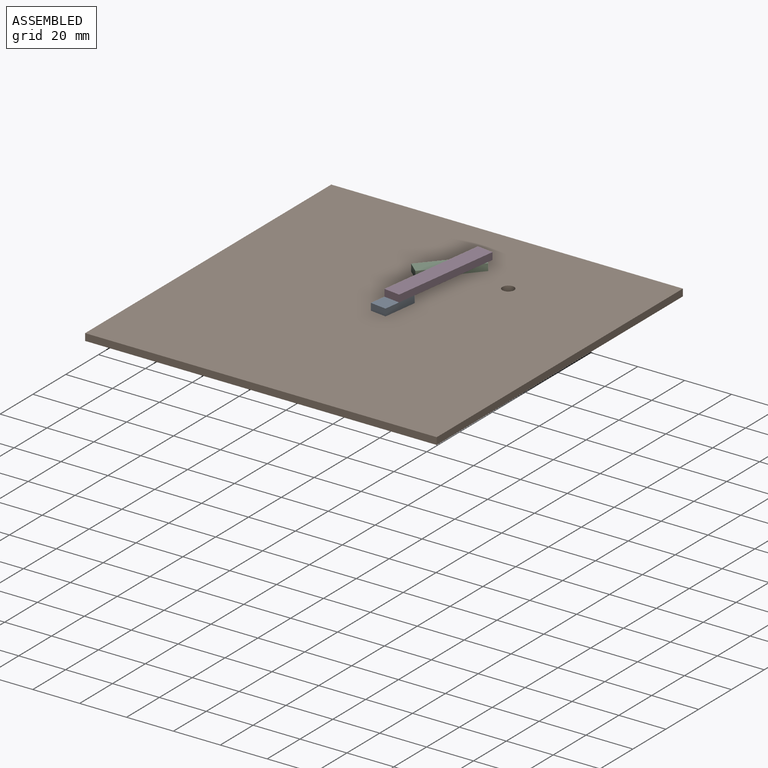
[diagram: assembled view]
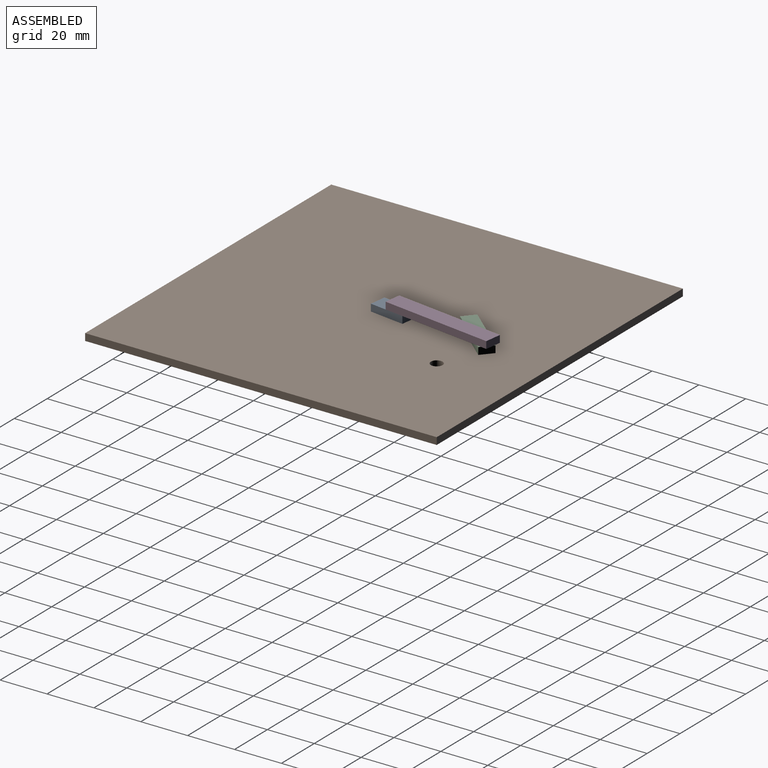
[diagram: assembled view, second angle]
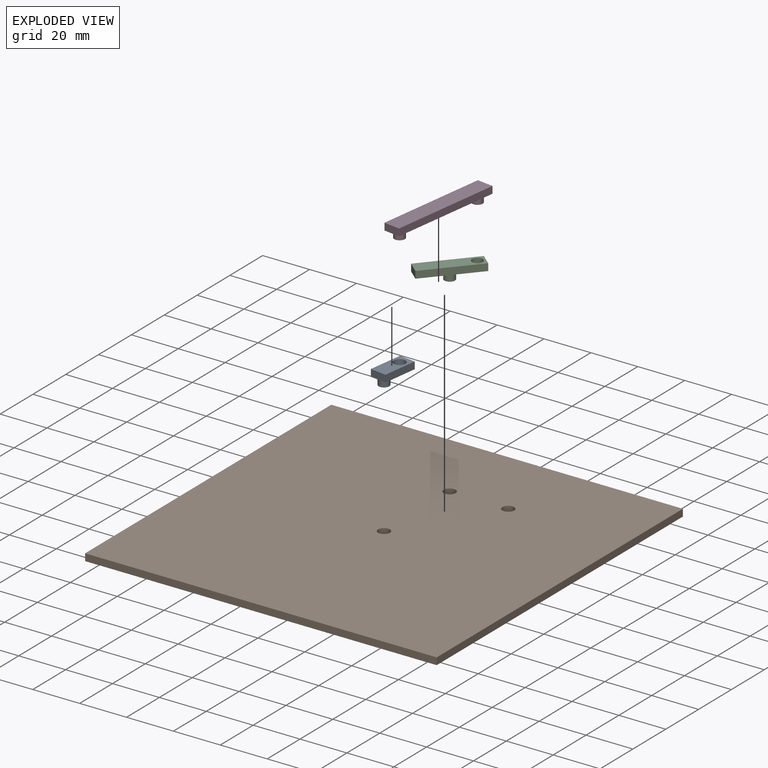
[diagram: exploded view]
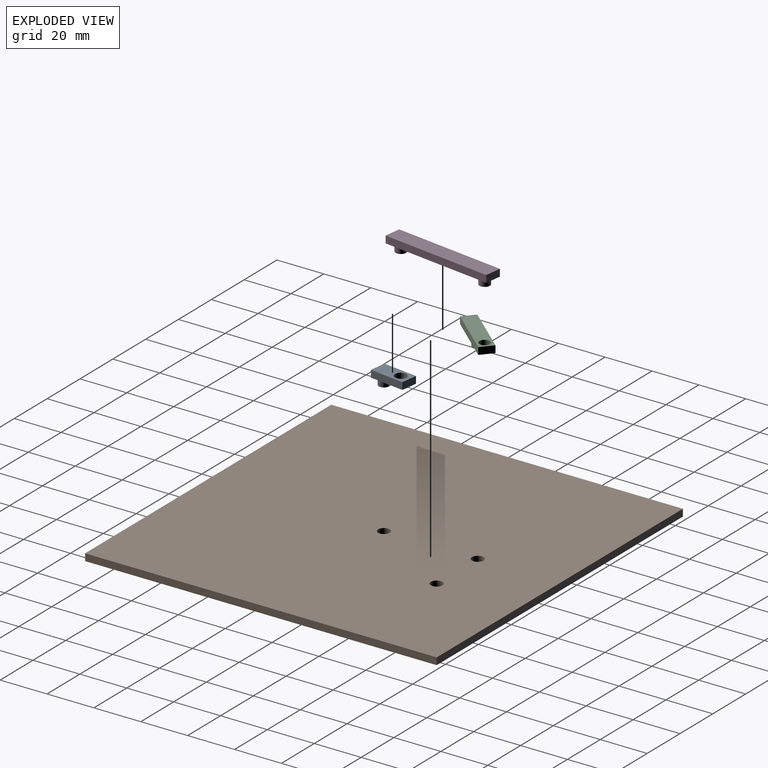
[diagram: exploded view, second angle]
ASSEMBLY  parts=4 mates=4
PART A: 9 faces, bbox 7x15x6 mm
  f0: plane 7x3mm, normal (0,-1,0), area 21mm2, adj f1,f4,f5,f6
  f1: plane 15x3mm, normal (1,0,0), area 45mm2, adj f0,f2,f5,f6
  f2: plane 7x3mm, normal (0,1,0), area 21mm2, adj f1,f4,f5,f6
  f3: cylinder r=2.5mm len=5mm, axis (0,0,-1), area 47.1mm2, adj f5,f6
  f4: plane 15x3mm, normal (-1,0,0), area 45mm2, adj f0,f2,f5,f6
  f5: plane 15x7mm, normal (0,0,1), area 85.4mm2, adj f0,f1,f2,f3,f4
  f6: plane 15x7mm, normal (0,0,-1), area 69.5mm2, adj f0,f1,f2,f3,f4,f7
  f7: cylinder r=2.25mm len=4.5mm, axis (0,0,1), area 42.4mm2, adj f6,f8
  f8: plane 4.5x4.5mm, normal (0,0,-1), area 15.9mm2, adj f7
PART B: 9 faces, bbox 150x150x3 mm
  f0: plane 150x3mm, normal (0,-1,0), area 450mm2, adj f1,f6,f7,f8
  f1: plane 150x3mm, normal (1,0,0), area 450mm2, adj f0,f2,f7,f8
  f2: plane 150x3mm, normal (0,1,0), area 450mm2, adj f1,f6,f7,f8
  f3: cylinder r=2.5mm len=5mm, axis (0,0,-1), area 47.1mm2, adj f7,f8
  f4: cylinder r=2.5mm len=5mm, axis (0,0,-1), area 47.1mm2, adj f7,f8
  f5: cylinder r=2.5mm len=5mm, axis (0,0,-1), area 47.1mm2, adj f7,f8
  f6: plane 150x3mm, normal (-1,0,0), area 450mm2, adj f0,f2,f7,f8
  f7: plane 150x150mm, normal (0,0,1), area 22441.1mm2, adj f0,f1,f2,f3,f4,f5,f6
  f8: plane 150x150mm, normal (0,0,-1), area 22441.1mm2, adj f0,f1,f2,f3,f4,f5,f6
PART C: 9 faces, bbox 26.2x6.2x6 mm
  f0: cylinder r=2.25mm len=4.5mm, axis (0,0,1), area 42.4mm2, adj f1,f8
  f1: plane 4.5x4.5mm, normal (0,0,-1), area 15.9mm2, adj f0
  f2: plane 26.23x3mm, normal (0,-1,0), area 78.7mm2, adj f3,f6,f7,f8
  f3: plane 6.22x3mm, normal (1,0,0), area 18.7mm2, adj f2,f4,f7,f8
  f4: plane 26.23x3mm, normal (0,1,0), area 78.7mm2, adj f3,f6,f7,f8
  f5: cylinder r=2.25mm len=4.5mm, axis (0,0,-1), area 42.4mm2, adj f7,f8
  f6: plane 6.22x3mm, normal (-1,0,0), area 18.7mm2, adj f2,f4,f7,f8
  f7: plane 26.23x6.22mm, normal (0,0,1), area 147.3mm2, adj f2,f3,f4,f5,f6
  f8: plane 26.23x6.22mm, normal (0,0,-1), area 131.3mm2, adj f0,f2,f3,f4,f5,f6
PART D: 10 faces, bbox 7x48x6 mm
  f0: cylinder r=2.25mm len=4.5mm, axis (0,0,1), area 42.4mm2, adj f1,f9
  f1: plane 4.5x4.5mm, normal (0,0,-1), area 15.9mm2, adj f0
  f2: cylinder r=2.25mm len=4.5mm, axis (0,0,1), area 42.4mm2, adj f3,f9
  f3: plane 4.5x4.5mm, normal (0,0,-1), area 15.9mm2, adj f2
  f4: plane 7x3mm, normal (0,1,0), area 21mm2, adj f5,f7,f8,f9
  f5: plane 48x3mm, normal (-1,0,0), area 144mm2, adj f4,f6,f8,f9
  f6: plane 7x3mm, normal (0,-1,0), area 21mm2, adj f5,f7,f8,f9
  f7: plane 48x3mm, normal (1,0,0), area 144mm2, adj f4,f6,f8,f9
  f8: plane 48x7mm, normal (0,0,1), area 336mm2, adj f4,f5,f6,f7
  f9: plane 48x7mm, normal (0,0,-1), area 304.2mm2, adj f0,f2,f4,f5,f6,f7
PLACE A rot(axis=(0,0,1),172.1deg) t=(73.63,71.31,-29.31)mm
PLACE B t=(73.01,66.85,-32.31)mm fixed
PLACE C rot(axis=(0,0,1),49deg) t=(73.01,106.85,-29.31)mm
PLACE D rot(axis=(0,0,-1),7.9deg) t=(70.92,77.31,-26.31)mm
MATE revolute D.f0 <-> C.f5  axis (0,0,1) through (79.57,114.4,-26.31)mm
MATE revolute A.f3 <-> D.f2  axis (0,0,-1) through (74.1,74.77,-26.31)mm
MATE revolute C.f0 <-> B.f3  axis (0,0,1) through (73.01,106.85,-29.31)mm
MATE revolute A.f7 <-> B.f5  axis (0,0,1) through (73.01,66.85,-29.31)mm
